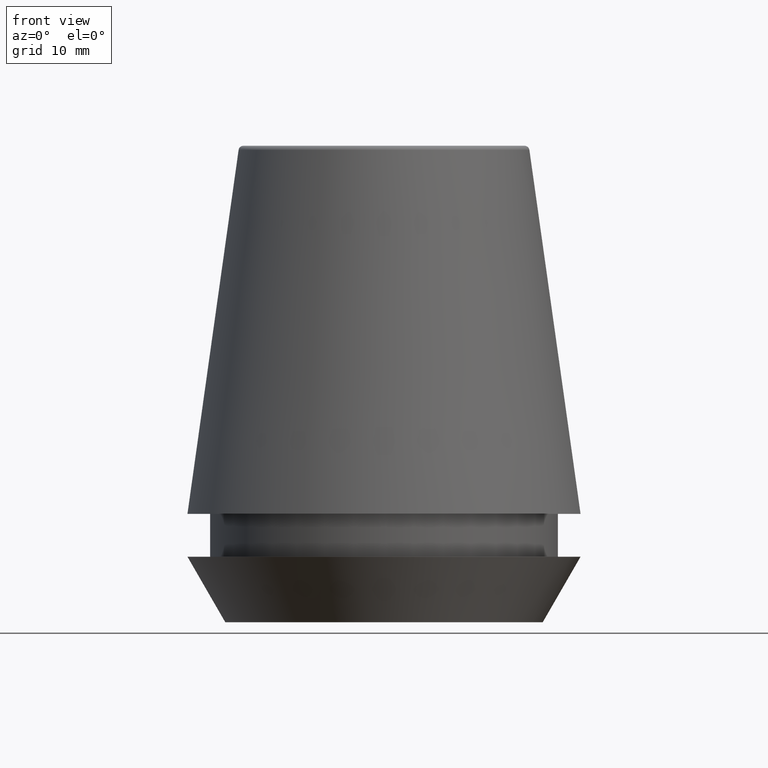
[diagram: clean part render]
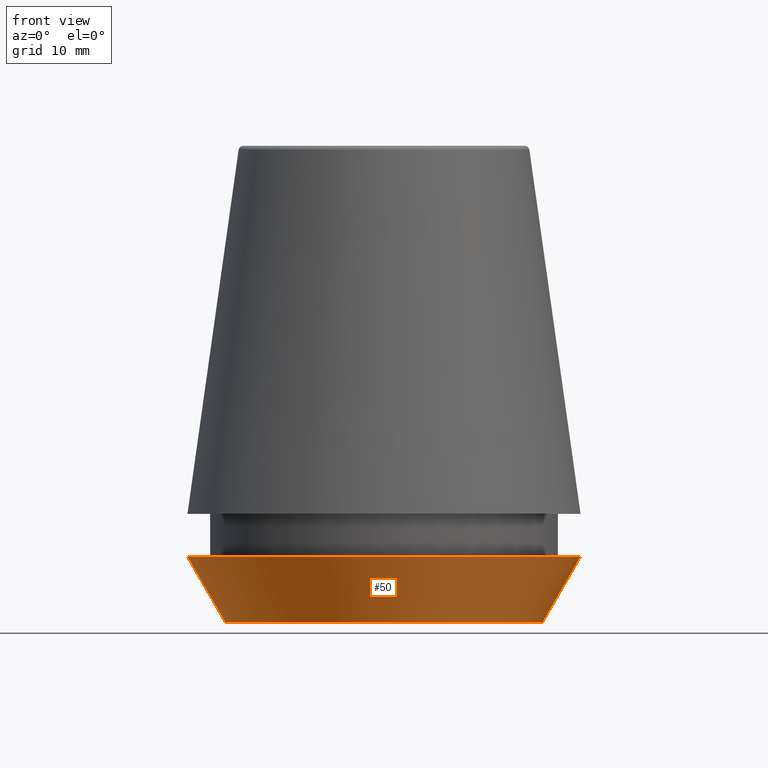
[diagram: same view with one face highlighted and labeled with its STEP entity id]
A machine part, front view. The second image highlights one B-rep face of the part: STEP entity #50.
In plain terms, the highlighted conical surface has half-angle 30 deg.
Its self-contained STEP definition (entity closure, byte-faithful):
#3 = ORIENTED_EDGE ( 'NONE', *, *, #75, .F. ) ;
#14 = EDGE_CURVE ( 'NONE', #68, #47, #300, .T. ) ;
#33 = DIRECTION ( 'NONE',  ( -0.4999999999999947300, 6.123233995736700700E-017, 0.8660254037844418200 ) ) ;
#34 = CARTESIAN_POINT ( 'NONE',  ( -16.50000000000000000, 2.020667218593133100E-015, 5.500000000000005300 ) ) ;
#35 = CARTESIAN_POINT ( 'NONE',  ( 0.0000000000000000000, 0.0000000000000000000, 0.0000000000000000000 ) ) ;
#39 = AXIS2_PLACEMENT_3D ( 'NONE', #245, #308, #387 ) ;
#41 = EDGE_LOOP ( 'NONE', ( #3, #170, #150, #262 ) ) ;
#47 = VERTEX_POINT ( 'NONE', #133 ) ;
#50 = ADVANCED_FACE ( 'NONE', ( #279 ), #372, .T. ) ;
#68 = VERTEX_POINT ( 'NONE', #34 ) ;
#71 = DIRECTION ( 'NONE',  ( -0.0000000000000000000, -0.0000000000000000000, 1.000000000000000000 ) ) ;
#75 = EDGE_CURVE ( 'NONE', #236, #68, #153, .T. ) ;
#126 = VERTEX_POINT ( 'NONE', #240 ) ;
#129 = DIRECTION ( 'NONE',  ( 1.000000000000000000, 0.0000000000000000000, 0.0000000000000000000 ) ) ;
#133 = CARTESIAN_POINT ( 'NONE',  ( 16.50000000000000000, 0.0000000000000000000, 5.500000000000005300 ) ) ;
#135 = CARTESIAN_POINT ( 'NONE',  ( 0.0000000000000000000, 0.0000000000000000000, 5.500000000000005300 ) ) ;
#137 = AXIS2_PLACEMENT_3D ( 'NONE', #35, #71, #129 ) ;
#148 = DIRECTION ( 'NONE',  ( 0.4999999999999947300, 0.0000000000000000000, 0.8660254037844418200 ) ) ;
#150 = ORIENTED_EDGE ( 'NONE', *, *, #271, .T. ) ;
#153 = LINE ( 'NONE', #280, #360 ) ;
#163 = DIRECTION ( 'NONE',  ( -0.0000000000000000000, -0.0000000000000000000, 1.000000000000000000 ) ) ;
#170 = ORIENTED_EDGE ( 'NONE', *, *, #269, .T. ) ;
#200 = CIRCLE ( 'NONE', #39, 13.32457351945710200 ) ;
#206 = CARTESIAN_POINT ( 'NONE',  ( 13.32457351945710200, 0.0000000000000000000, 0.0000000000000000000 ) ) ;
#236 = VERTEX_POINT ( 'NONE', #349 ) ;
#240 = CARTESIAN_POINT ( 'NONE',  ( 13.32457351945710200, 0.0000000000000000000, 0.0000000000000000000 ) ) ;
#245 = CARTESIAN_POINT ( 'NONE',  ( 0.0000000000000000000, 0.0000000000000000000, 0.0000000000000000000 ) ) ;
#256 = LINE ( 'NONE', #206, #371 ) ;
#262 = ORIENTED_EDGE ( 'NONE', *, *, #14, .F. ) ;
#269 = EDGE_CURVE ( 'NONE', #236, #126, #200, .T. ) ;
#271 = EDGE_CURVE ( 'NONE', #126, #47, #256, .T. ) ;
#279 = FACE_OUTER_BOUND ( 'NONE', #41, .T. ) ;
#280 = CARTESIAN_POINT ( 'NONE',  ( -13.32457351945710200, 1.631789631060672300E-015, 0.0000000000000000000 ) ) ;
#292 = AXIS2_PLACEMENT_3D ( 'NONE', #135, #163, #309 ) ;
#300 = CIRCLE ( 'NONE', #292, 16.50000000000000000 ) ;
#308 = DIRECTION ( 'NONE',  ( -0.0000000000000000000, -0.0000000000000000000, 1.000000000000000000 ) ) ;
#309 = DIRECTION ( 'NONE',  ( 1.000000000000000000, 0.0000000000000000000, 0.0000000000000000000 ) ) ;
#349 = CARTESIAN_POINT ( 'NONE',  ( -13.32457351945710200, 1.826228424826902600E-015, 0.0000000000000000000 ) ) ;
#360 = VECTOR ( 'NONE', #33, 999.9999999999998900 ) ;
#371 = VECTOR ( 'NONE', #148, 999.9999999999998900 ) ;
#372 = CONICAL_SURFACE ( 'NONE', #137, 13.32457351945710200, 0.5235987755982927100 ) ;
#387 = DIRECTION ( 'NONE',  ( 1.000000000000000000, 0.0000000000000000000, 0.0000000000000000000 ) ) ;